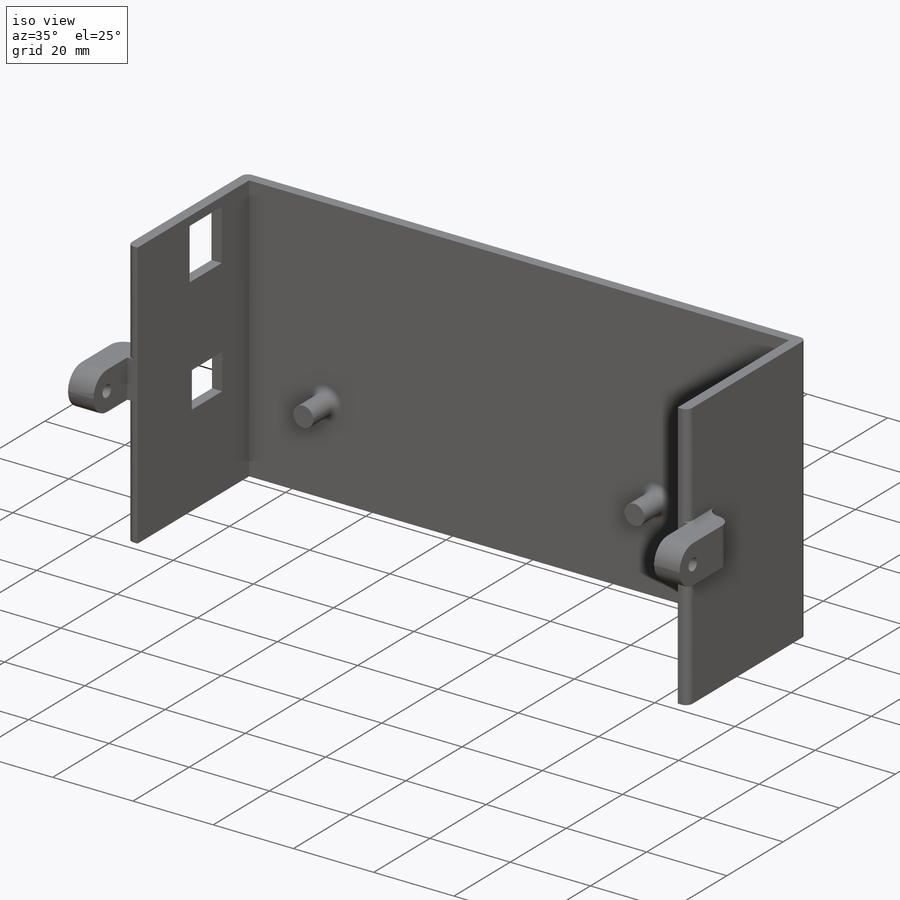
[diagram: iso view]
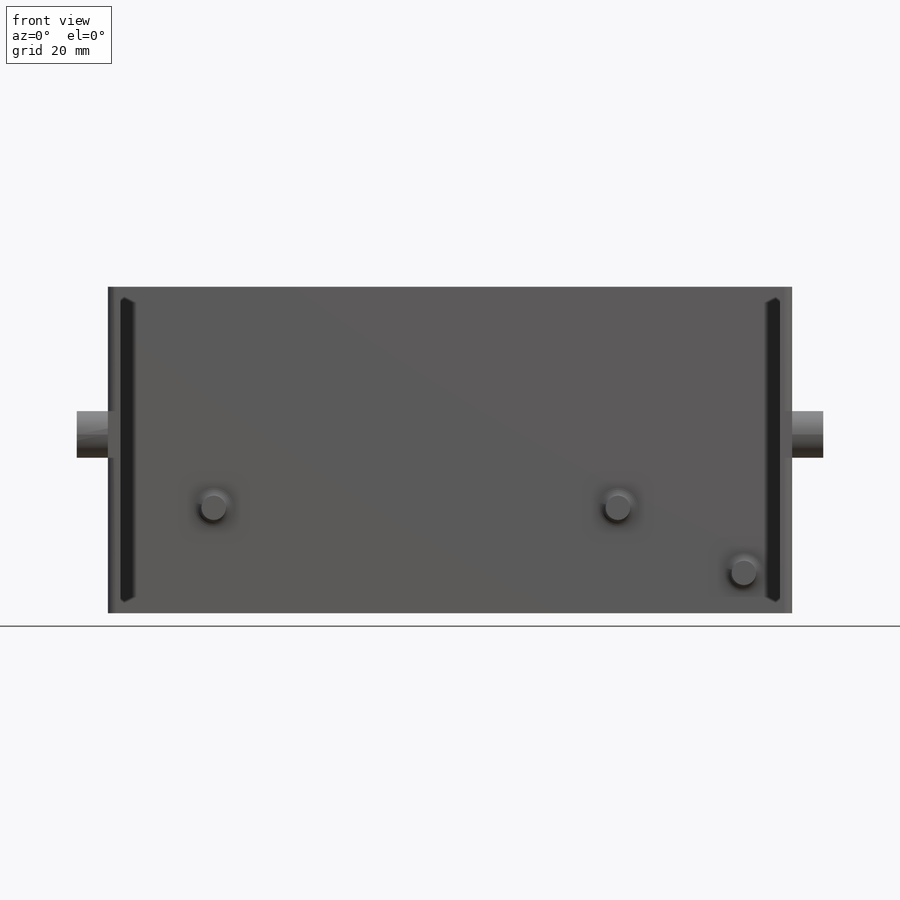
[diagram: front view]
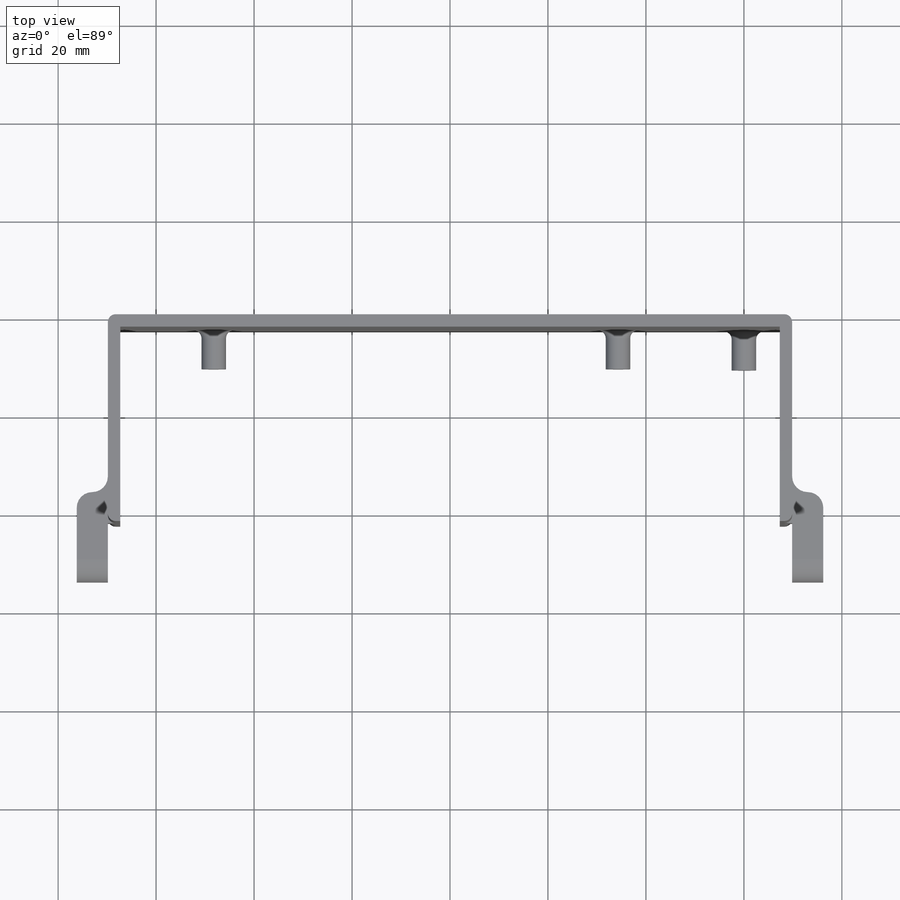
[diagram: top view]
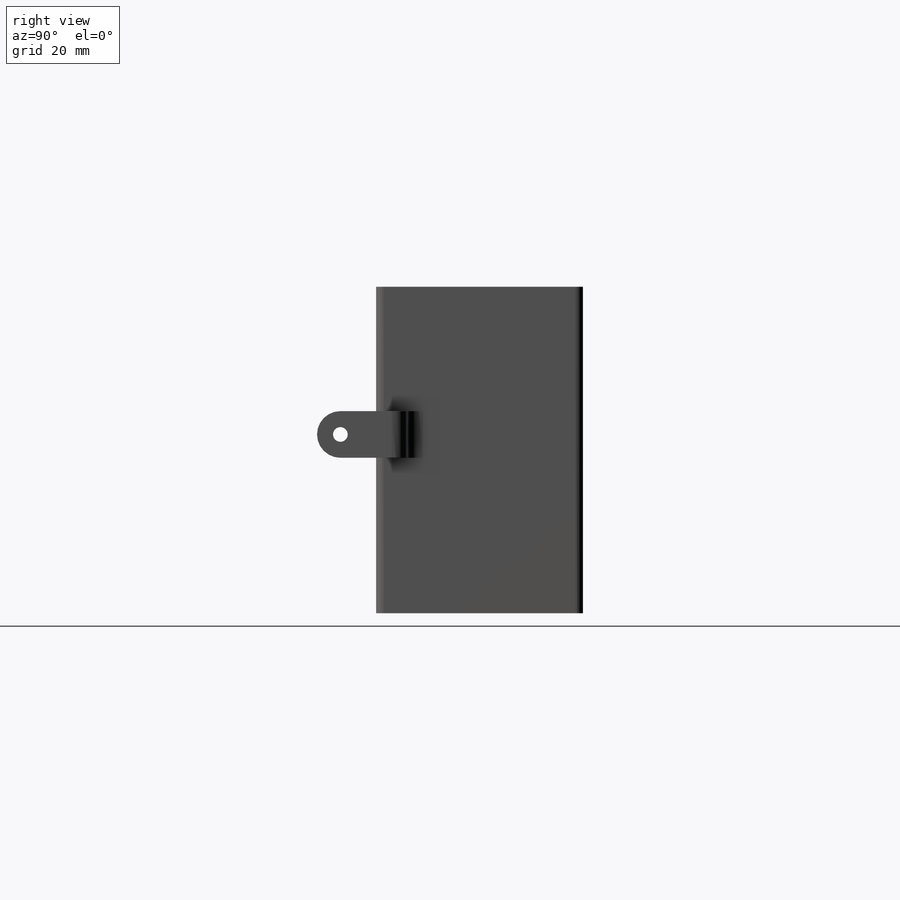
[diagram: right view]
SOLIDWORKS PART (.sldprt)
format: sldprt  version: not decoded by parser v0  size: 532,992 bytes
history: native  units: mm
features: sketch x11, extrude x8, cut_extrude x3, fillet x3, material x1 (+12 scaffold rows collapsed)
feature tree (38):
  scaffold x12  (default folders/planes/origin — collapsed)
  material  "Material <not specified>"
  sketch  "Sketch1"  dims[D1=209.55mm D2=139.7mm]
  extrude  "Boss-Extrude1"  Depth=2.54mm
  sketch  "Sketch2"  dims[c1.D5=5.0mm c1.D6=5.0mm c1.D8=5.0mm c1.D9=5.0mm c1.D2=6.0mm c1.D3=6.0mm c1.D1=6.0mm c2.D2=6.0mm c2.D3=6.0mm c2.D4=6.0mm c2.D7=26.5mm c2.D10=30.0mm c2.D11=30.0mm c2.D12=26.5mm c3.D4=88.9mm c3.D13=88.9mm c3.D16=31.0mm c3.D2=18.5mm c3.D3=18.5mm c4.D16=139.7mm c4.D14=3.0 c4.D15=3.0]
  sketch  "Sketch3"  dims[c1.D10=~4.706173mm c1.D11=5.0mm c1.D13=~3.931032mm c1.D14=5.0mm c1.D16=5.0mm c1.D17=6.0mm c1.D18=6.0mm c1.D20=6.0mm c1.D19=5.0mm c2.D20=4.0mm c2.D21=~3.478049mm c2.D22=~3.478049mm c2.D23=5.0mm c2.D24=~4.22443mm c2.D25=~4.22443mm c2.D26=5.0mm c2.D1=7.62mm c2.D2=101.6mm c2.D3=53.34mm c2.D4=19.05mm c2.D5=19.05mm c2.D6=76.2mm c2.D7=4.7625mm c2.D8=6.35mm c2.D9=14.0mm c2.D10=2.5mm c2.D12=14.0mm c2.D13=48.2mm c2.D15=74.9mm c2.D17=0.0mm c2.D19=~12.370695mm c3.D20=~0.329305mm c3.D18=96.52mm c4.D20=2.5mm c4.D21=3.5mm c4.D22=3.5mm c4.D24=3.5mm c4.D25=3.5mm c4.D27=101.6mm]
  extrude  "Boss-Extrude2"  Depth=7.9375mm
  extrude  "Boss-Extrude3"  Depth=7.9375mm
  sketch  "Sketch4"  dims[D1=2.54mm D2=2.54mm D3=2.54mm]
  extrude  "Boss-Extrude4"  Depth=39.6875mm
  sketch  "Sketch5"  dims[D1=66.675mm D2=66.675mm]
  extrude  "Boss-Extrude5"  Depth=14.50848mm
  sketch  "Sketch7"  dims[D1=50.8mm D2=4.7625mm D3=50.8mm D4=4.7625mm D5=9.525mm D6=9.525mm]
  extrude  "Boss-Extrude6"  Depth=2.54mm
  sketch  "Sketch6"
  cut_extrude  "Cut-Extrude1"  Depth=101.6mm
  sketch  "Sketch8"  dims[D1=6.35mm D2=6.35mm D3=9.525mm D4=9.525mm D5=25.4mm D6=25.4mm]
  extrude  "Boss-Extrude7"  Depth=12.065mm
  extrude  "Boss-Extrude8"  [1 undecoded]
  sketch  "Sketch8<2>"  dims[D1=6.35mm]
  fillet  "Fillet1"  Radius=4.7625mm
  fillet  "Fillet2"  Radius=1.5875mm
  fillet  "Fillet3"  Radius=3.175mm
  sketch  "Sketch9"  dims[D1=3.0mm]
  cut_extrude  "Cut-Extrude2"  [1 undecoded]
  sketch  "Sketch10"  dims[D1=11.43mm D2=12.7mm D3=12.2555mm D4=51.7652mm D5=20.066mm D6=8.89mm D7=10.795mm D8=0.1524mm]
  cut_extrude  "Cut-Extrude3"  Depth=2.54mm
decode coverage: 22 of 25 modeling features carry decoded parameters
note: ~ marks probable driven/reference dimensions
note: 2 parameter values undecoded
note: suppression state not decoded; provenance and decode notes live in map.json
